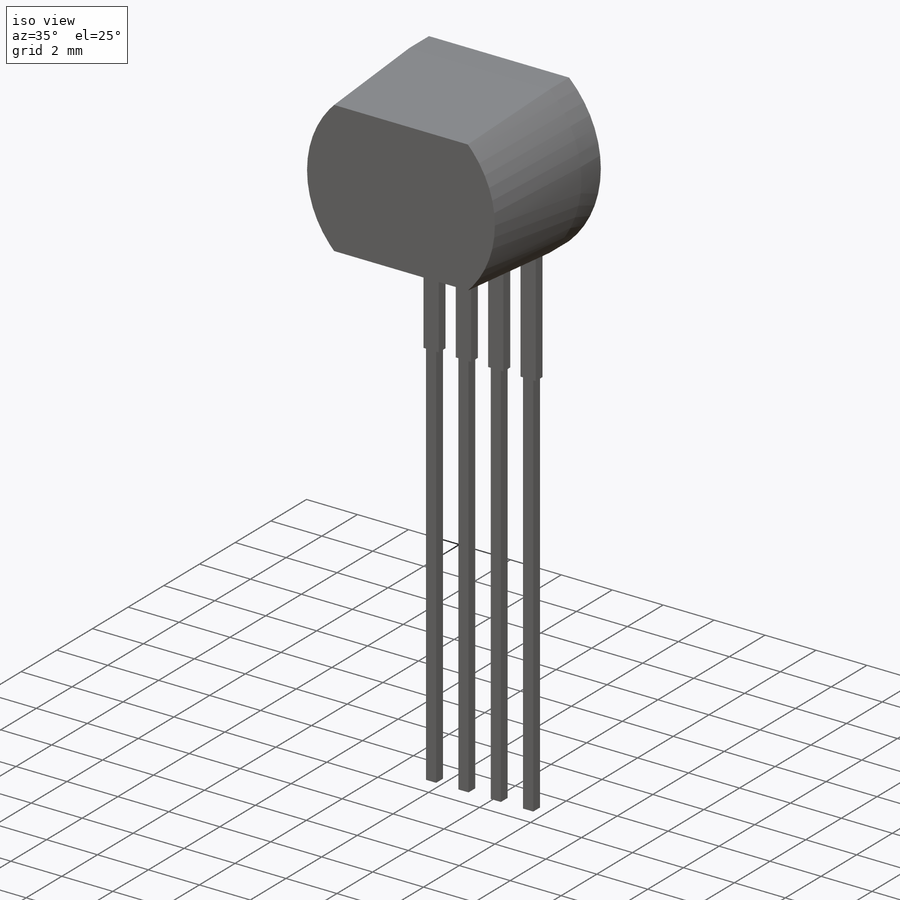
[diagram: iso view]
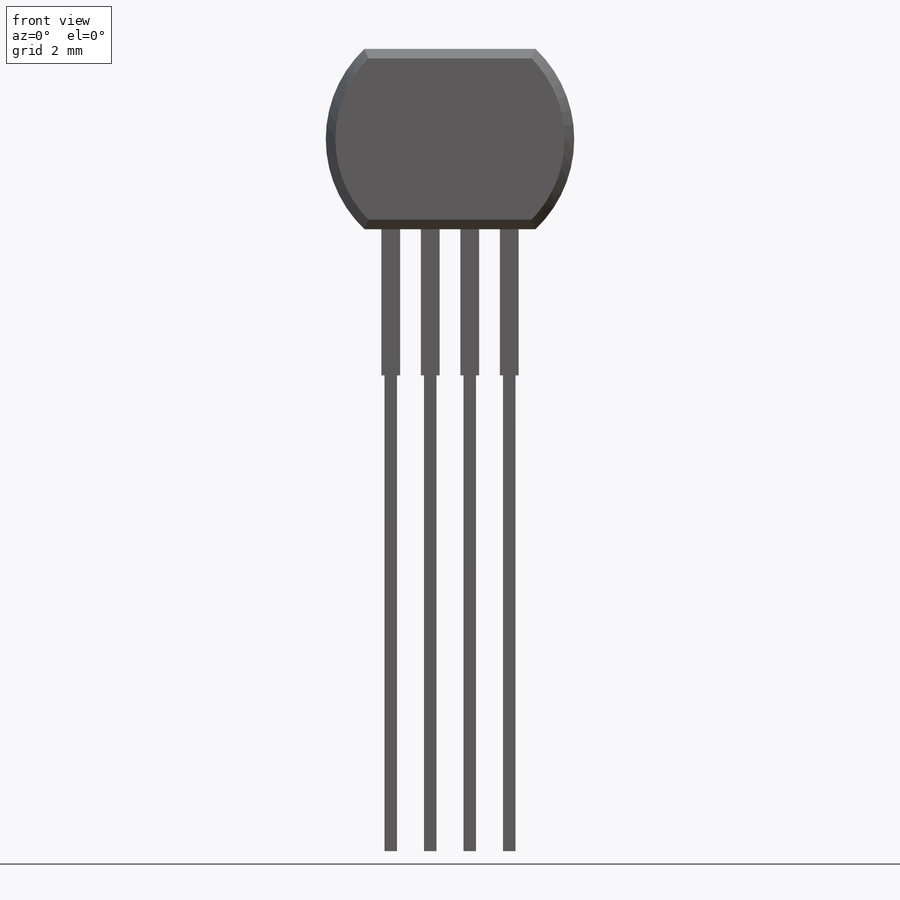
[diagram: front view]
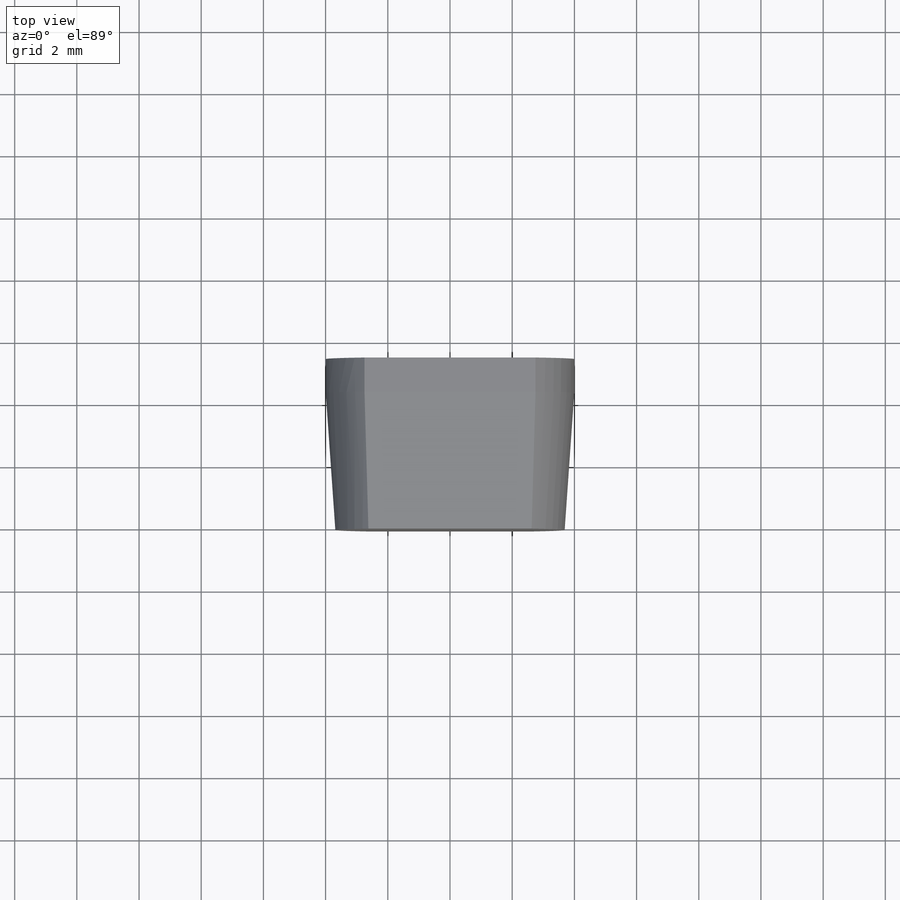
[diagram: top view]
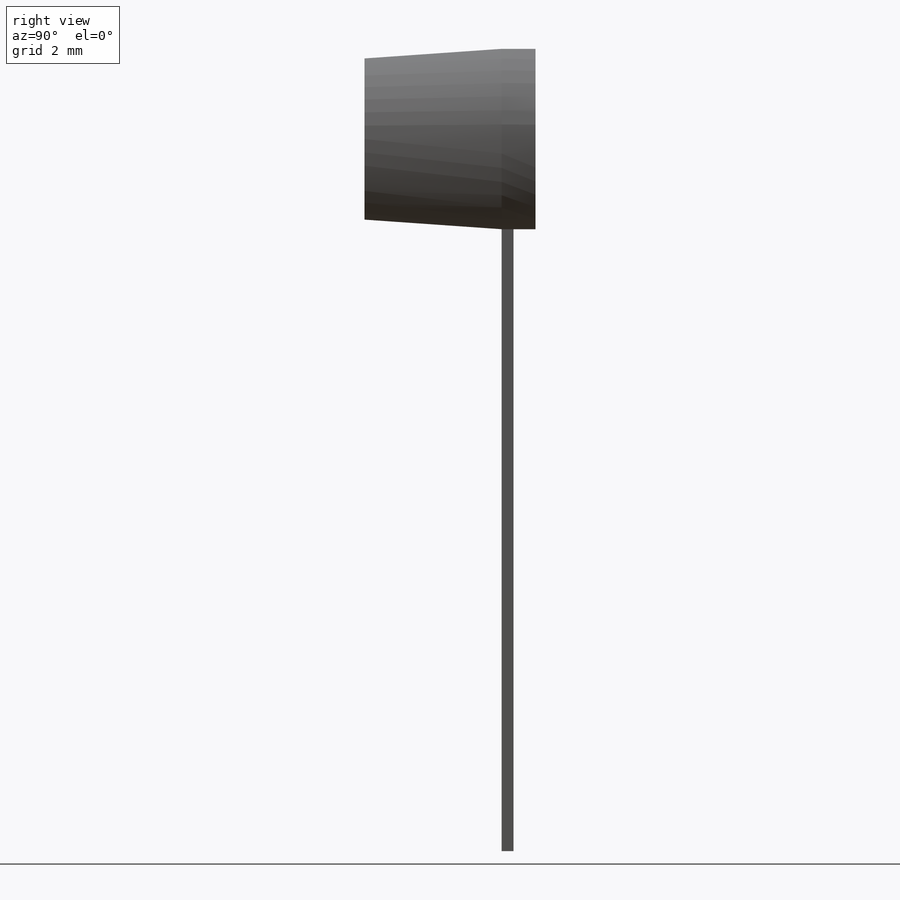
[diagram: right view]
SOLIDWORKS PART (.sldprt)
format: sldprt  version: not decoded by parser v0  size: 385,536 bytes
history: native  units: mm
features: sketch x3, extrude x2, material x1, cut_extrude x1 (+13 scaffold rows collapsed)
feature tree (20):
  scaffold x13  (default folders/planes/origin — collapsed)
  material  "6061-T6 (SS)"
  sketch  "Sketch1"  dims[D1=8.0mm D2=5.5mm D3=5.8mm]
  extrude  "Boss-Extrude1"  Depth=4.41mm
  sketch  "Sketch2"  dims[c1.D2=1.27mm c1.D3=4.7mm c1.D4=0.6mm c1.D5=0.4mm c1.D1=15.3mm c1.D6=1.27mm c2.D2=4.0]
  extrude  "Boss-Extrude2"  Depth=0.38mm
  sketch  "Sketch3"
  cut_extrude  "Cut-Extrude1"  Depth=0.01mm
decode coverage: 5 of 6 modeling features carry decoded parameters
note: suppression state not decoded; provenance and decode notes live in map.json
